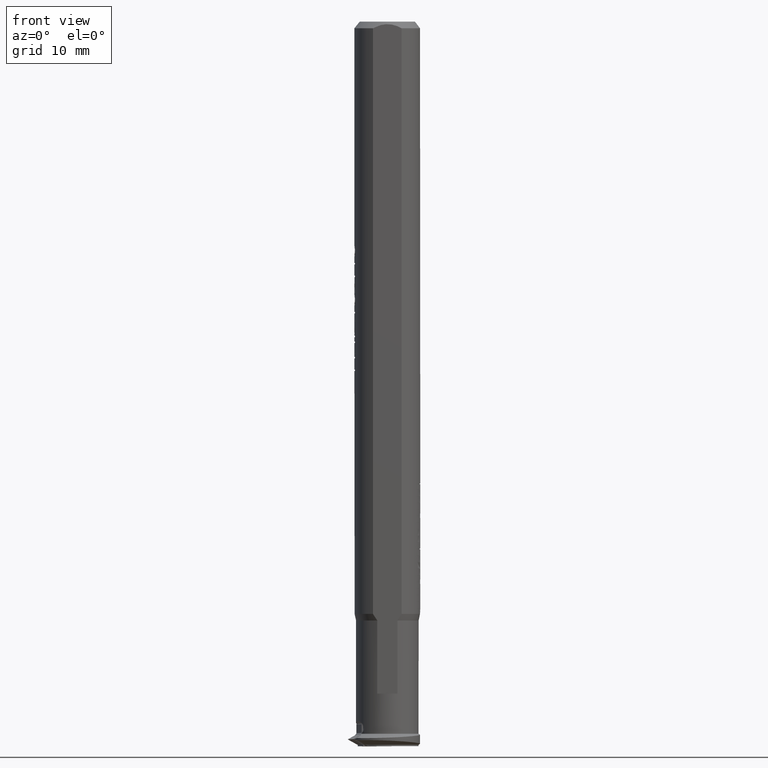
[diagram: clean part render]
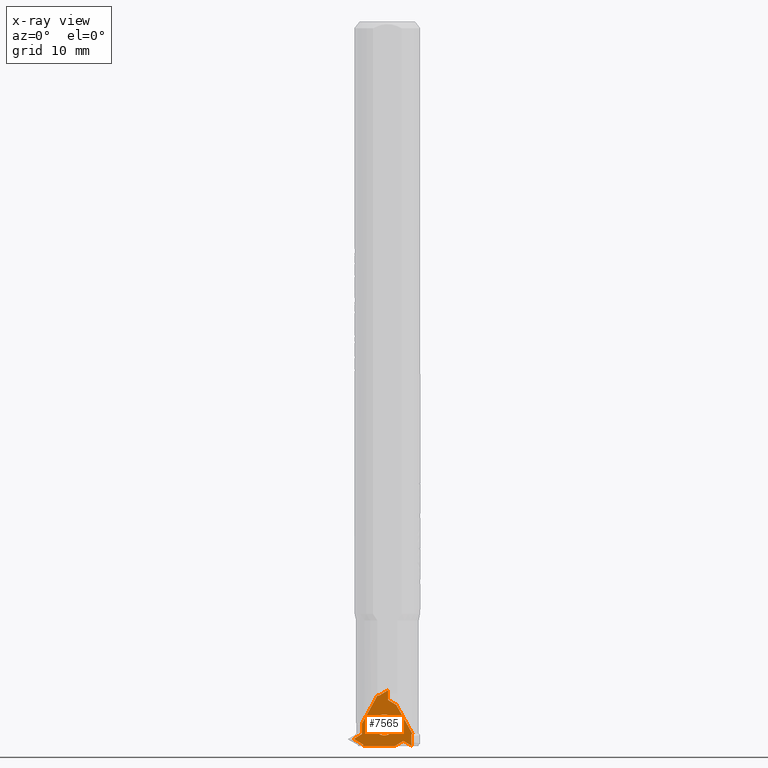
[diagram: x-ray — body ghosted, one internal face saturated and labeled with its STEP entity id]
A machine part, front view, then the same camera in x-ray: the body is ghosted and one INTERNAL B-rep face — a face not visible from any outside direction — is saturated and labeled: STEP entity #7565.
In plain terms, the highlighted planar face has unit normal (0.284, -0.9587, 0.0175).
Its self-contained STEP definition (entity closure, byte-faithful):
#2 = EDGE_CURVE ( 'NONE', #1938, #11588, #8624, .T. ) ;
#68 = VECTOR ( 'NONE', #2410, 1000.000000000000000 ) ;
#124 = CARTESIAN_POINT ( 'NONE',  ( 30.35267940778203055, 19.58460475410077350, 31.88854010275164796 ) ) ;
#163 = ORIENTED_EDGE ( 'NONE', *, *, #1622, .T. ) ;
#202 = DIRECTION ( 'NONE',  ( -0.9998475907802266693, 0.01686348481539434382, -0.004518638163989839238 ) ) ;
#237 = CARTESIAN_POINT ( 'NONE',  ( 38.78294239166275048, 20.48588703296727687, 35.44932666681565792 ) ) ;
#453 = CARTESIAN_POINT ( 'NONE',  ( 37.74575299447179333, 17.90819771707623431, 26.68344960724523318 ) ) ;
#538 = ORIENTED_EDGE ( 'NONE', *, *, #2, .T. ) ;
#981 = LINE ( 'NONE', #10483, #1013 ) ;
#992 = CARTESIAN_POINT ( 'NONE',  ( 38.80283257755898063, 19.74832583102699601, 32.96058419290434216 ) ) ;
#1013 = VECTOR ( 'NONE', #10801, 1000.000000000000227 ) ;
#1052 = CARTESIAN_POINT ( 'NONE',  ( 32.59036360819784051, 19.92066147013192889, 33.16057255138356652 ) ) ;
#1070 = LINE ( 'NONE', #9150, #9295 ) ;
#1181 = DIRECTION ( 'NONE',  ( 0.01745240643727649990, 0.9586737019784269398, -0.2839720877912588759 ) ) ;
#1237 = FACE_OUTER_BOUND ( 'NONE', #1760, .T. ) ;
#1312 = ORIENTED_EDGE ( 'NONE', *, *, #9083, .T. ) ;
#1622 = EDGE_CURVE ( 'NONE', #3891, #13484, #9354, .T. ) ;
#1645 = VECTOR ( 'NONE', #3368, 1000.000000000000227 ) ;
#1710 = VERTEX_POINT ( 'NONE', #7313 ) ;
#1760 = EDGE_LOOP ( 'NONE', ( #12413, #13482, #1312, #9151, #4773, #538, #6501, #163, #6337, #3579, #12958, #9639, #9559, #4110, #4515 ) ) ;
#1938 = VERTEX_POINT ( 'NONE', #6869 ) ;
#1943 = CARTESIAN_POINT ( 'NONE',  ( 38.78294239166275048, 20.48588703296727687, 35.44932666681565792 ) ) ;
#2024 = DIRECTION ( 'NONE',  ( -0.4995281435317117658, 0.2543895985764801360, 0.8281048037270759554 ) ) ;
#2271 = AXIS2_PLACEMENT_3D ( 'NONE', #7542, #5154, #7412 ) ;
#2410 = DIRECTION ( 'NONE',  ( -0.8661218432352896235, -0.1273996282218899379, -0.4833242052697429569 ) ) ;
#2482 = LINE ( 'NONE', #10833, #68 ) ;
#2918 = DIRECTION ( 'NONE',  ( 0.0004568594138889568506, 0.2840076689367019291, 0.9588218996584385589 ) ) ;
#3053 = CARTESIAN_POINT ( 'NONE',  ( 31.83001730947549035, 19.55968789126874086, 31.89521667574663510 ) ) ;
#3263 = AXIS2_PLACEMENT_3D ( 'NONE', #6397, #1181, #4338 ) ;
#3368 = DIRECTION ( 'NONE',  ( 0.4995281435317286967, -0.2543895985764796919, -0.8281048037270657414 ) ) ;
#3449 = LINE ( 'NONE', #8716, #9305 ) ;
#3573 = CARTESIAN_POINT ( 'NONE',  ( 30.35267940778203055, 19.58460475410077350, 31.88854010275164796 ) ) ;
#3579 = ORIENTED_EDGE ( 'NONE', *, *, #12421, .T. ) ;
#3599 = LINE ( 'NONE', #12283, #7954 ) ;
#3661 = DIRECTION ( 'NONE',  ( -0.4995281435317269758, 0.2543895985764675904, 0.8281048037270706264 ) ) ;
#3891 = VERTEX_POINT ( 'NONE', #453 ) ;
#3913 = EDGE_CURVE ( 'NONE', #7770, #1938, #3599, .T. ) ;
#4107 = EDGE_CURVE ( 'NONE', #1710, #6405, #2482, .T. ) ;
#4110 = ORIENTED_EDGE ( 'NONE', *, *, #10647, .T. ) ;
#4188 = FACE_BOUND ( 'NONE', #13211, .T. ) ;
#4338 = DIRECTION ( 'NONE',  ( 0.000000000000000000, 0.2840153447039157064, 0.9588197348681950505 ) ) ;
#4383 = LINE ( 'NONE', #10730, #4724 ) ;
#4447 = VECTOR ( 'NONE', #12596, 1000.000000000000227 ) ;
#4515 = ORIENTED_EDGE ( 'NONE', *, *, #4107, .T. ) ;
#4534 = EDGE_CURVE ( 'NONE', #11681, #5890, #11318, .T. ) ;
#4576 = CARTESIAN_POINT ( 'NONE',  ( 31.83001730947549035, 19.55968789126874086, 31.89521667574662800 ) ) ;
#4701 = VECTOR ( 'NONE', #5638, 1000.000000000000227 ) ;
#4724 = VECTOR ( 'NONE', #11831, 1000.000000000000114 ) ;
#4773 = ORIENTED_EDGE ( 'NONE', *, *, #3913, .T. ) ;
#4818 = VERTEX_POINT ( 'NONE', #7935 ) ;
#4880 = VERTEX_POINT ( 'NONE', #124 ) ;
#4897 = CARTESIAN_POINT ( 'NONE',  ( 37.00766864420985058, 18.28407439992182049, 27.90702670479642933 ) ) ;
#5074 = VERTEX_POINT ( 'NONE', #11129 ) ;
#5097 = LINE ( 'NONE', #4897, #9097 ) ;
#5127 = CARTESIAN_POINT ( 'NONE',  ( 38.60055037292320179, 18.31401184337759958, 28.10598942511515119 ) ) ;
#5154 = DIRECTION ( 'NONE',  ( -0.01745240643727651031, -0.9586737019784270508, 0.2839720877912588204 ) ) ;
#5484 = EDGE_CURVE ( 'NONE', #13484, #4818, #981, .T. ) ;
#5486 = EDGE_CURVE ( 'NONE', #6405, #10917, #10420, .T. ) ;
#5574 = VECTOR ( 'NONE', #11346, 1000.000000000000000 ) ;
#5638 = DIRECTION ( 'NONE',  ( 0.5003194472485011923, 0.2375261137610882589, 0.8326234418910559709 ) ) ;
#5890 = VERTEX_POINT ( 'NONE', #12082 ) ;
#5900 = CARTESIAN_POINT ( 'NONE',  ( 31.10606095184860820, 19.10247408721610185, 30.30719570428262699 ) ) ;
#6008 = VECTOR ( 'NONE', #202, 1000.000000000000227 ) ;
#6080 = DIRECTION ( 'NONE',  ( -0.9998475907802267804, 0.01686348481539011110, -0.004518638163994717280 ) ) ;
#6259 = VERTEX_POINT ( 'NONE', #6401 ) ;
#6290 = CARTESIAN_POINT ( 'NONE',  ( 37.74575299447179333, 17.90819771707623431, 26.68344960724523318 ) ) ;
#6337 = ORIENTED_EDGE ( 'NONE', *, *, #5484, .T. ) ;
#6397 = CARTESIAN_POINT ( 'NONE',  ( 35.61440356861483281, 19.32019038160477109, 31.31926810852599630 ) ) ;
#6401 = CARTESIAN_POINT ( 'NONE',  ( 38.04368884023122632, 20.13492721295372689, 34.21907299626947463 ) ) ;
#6405 = VERTEX_POINT ( 'NONE', #7686 ) ;
#6431 = VERTEX_POINT ( 'NONE', #12700 ) ;
#6501 = ORIENTED_EDGE ( 'NONE', *, *, #7204, .T. ) ;
#6589 = CARTESIAN_POINT ( 'NONE',  ( 35.48817860815978520, 18.30970220298536333, 27.90015963252460907 ) ) ;
#6730 = EDGE_CURVE ( 'NONE', #5074, #7770, #4383, .T. ) ;
#6869 = CARTESIAN_POINT ( 'NONE',  ( 35.48817860815978520, 18.30970220298536333, 27.90015963252460551 ) ) ;
#7204 = EDGE_CURVE ( 'NONE', #11588, #3891, #5097, .T. ) ;
#7313 = CARTESIAN_POINT ( 'NONE',  ( 36.97479395098873312, 20.56557627051365600, 35.60722751978192235 ) ) ;
#7412 = DIRECTION ( 'NONE',  ( 0.000000000000000000, -0.2840153447039163170, -0.9588197348681949395 ) ) ;
#7542 = CARTESIAN_POINT ( 'NONE',  ( 30.34214971424912832, 19.58996710364134231, 31.90599595565859303 ) ) ;
#7565 = ADVANCED_FACE ( 'NONE', ( #1237, #4188 ), #11634, .T. ) ;
#7686 = CARTESIAN_POINT ( 'NONE',  ( 32.59036360819784051, 19.92066147013193245, 33.16057255138356652 ) ) ;
#7770 = VERTEX_POINT ( 'NONE', #5900 ) ;
#7935 = CARTESIAN_POINT ( 'NONE',  ( 38.80051989107924726, 18.31063914641451973, 28.10689315274795774 ) ) ;
#7954 = VECTOR ( 'NONE', #13101, 999.9999999999998863 ) ;
#8624 = LINE ( 'NONE', #6589, #4447 ) ;
#8637 = CARTESIAN_POINT ( 'NONE',  ( 38.04368884023122632, 20.13492721295372334, 34.21907299626947463 ) ) ;
#8716 = CARTESIAN_POINT ( 'NONE',  ( 37.07469957969505714, 20.51469835079836912, 35.44160655903653634 ) ) ;
#8756 = VECTOR ( 'NONE', #2918, 1000.000000000000227 ) ;
#9003 = EDGE_CURVE ( 'NONE', #6259, #11681, #10681, .T. ) ;
#9069 = DIRECTION ( 'NONE',  ( 0.4995281435317227570, -0.2543895985764820789, -0.8281048037270687390 ) ) ;
#9083 = EDGE_CURVE ( 'NONE', #4880, #5074, #11915, .T. ) ;
#9097 = VECTOR ( 'NONE', #9069, 1000.000000000000227 ) ;
#9150 = CARTESIAN_POINT ( 'NONE',  ( 38.80283257755897353, 19.74832583102699601, 32.96058419290434216 ) ) ;
#9151 = ORIENTED_EDGE ( 'NONE', *, *, #6730, .T. ) ;
#9175 = CIRCLE ( 'NONE', #3263, 1.599999999999996314 ) ;
#9295 = VECTOR ( 'NONE', #2024, 1000.000000000000000 ) ;
#9305 = VECTOR ( 'NONE', #3661, 1000.000000000000000 ) ;
#9354 = LINE ( 'NONE', #6290, #5574 ) ;
#9559 = ORIENTED_EDGE ( 'NONE', *, *, #4534, .T. ) ;
#9639 = ORIENTED_EDGE ( 'NONE', *, *, #9003, .T. ) ;
#9731 = EDGE_CURVE ( 'NONE', #12563, #6259, #1070, .T. ) ;
#10360 = LINE ( 'NONE', #12418, #8756 ) ;
#10420 = LINE ( 'NONE', #1052, #11287 ) ;
#10483 = CARTESIAN_POINT ( 'NONE',  ( 38.60055037292320179, 18.31401184337759958, 28.10598942511515475 ) ) ;
#10647 = EDGE_CURVE ( 'NONE', #5890, #1710, #3449, .T. ) ;
#10681 = LINE ( 'NONE', #8637, #4701 ) ;
#10730 = CARTESIAN_POINT ( 'NONE',  ( 31.20612484129831543, 19.14997930996832309, 30.47372039266084087 ) ) ;
#10801 = DIRECTION ( 'NONE',  ( 0.9998475907802266693, -0.01686348481539491975, 0.004518638163988857384 ) ) ;
#10833 = CARTESIAN_POINT ( 'NONE',  ( 36.97479395098874022, 20.56557627051365245, 35.60722751978191525 ) ) ;
#10917 = VERTEX_POINT ( 'NONE', #4576 ) ;
#11129 = CARTESIAN_POINT ( 'NONE',  ( 31.20612484129831188, 19.14997930996832309, 30.47372039266084087 ) ) ;
#11269 = LINE ( 'NONE', #3053, #12010 ) ;
#11287 = VECTOR ( 'NONE', #11517, 1000.000000000000114 ) ;
#11318 = LINE ( 'NONE', #1943, #6008 ) ;
#11346 = DIRECTION ( 'NONE',  ( 0.5003194472485072986, 0.2375261137610901185, 0.8326234418910518631 ) ) ;
#11517 = DIRECTION ( 'NONE',  ( -0.5003194472485098521, -0.2375261137610854001, -0.8326234418910516411 ) ) ;
#11588 = VERTEX_POINT ( 'NONE', #12543 ) ;
#11634 = PLANE ( 'NONE',  #2271 ) ;
#11681 = VERTEX_POINT ( 'NONE', #237 ) ;
#11800 = ORIENTED_EDGE ( 'NONE', *, *, #12820, .T. ) ;
#11831 = DIRECTION ( 'NONE',  ( -0.5003194472485037458, -0.2375261137610923667, -0.8326234418910534174 ) ) ;
#11915 = LINE ( 'NONE', #3573, #1645 ) ;
#12010 = VECTOR ( 'NONE', #6080, 1000.000000000000114 ) ;
#12082 = CARTESIAN_POINT ( 'NONE',  ( 37.07469957969505714, 20.51469835079836912, 35.44160655903653634 ) ) ;
#12283 = CARTESIAN_POINT ( 'NONE',  ( 31.10606095184861175, 19.10247408721610185, 30.30719570428262699 ) ) ;
#12413 = ORIENTED_EDGE ( 'NONE', *, *, #5486, .T. ) ;
#12418 = CARTESIAN_POINT ( 'NONE',  ( 38.80051989107925436, 18.31063914641451973, 28.10689315274795064 ) ) ;
#12421 = EDGE_CURVE ( 'NONE', #4818, #12563, #10360, .T. ) ;
#12543 = CARTESIAN_POINT ( 'NONE',  ( 37.00766864420984348, 18.28407439992182049, 27.90702670479642933 ) ) ;
#12562 = EDGE_CURVE ( 'NONE', #10917, #4880, #11269, .T. ) ;
#12563 = VERTEX_POINT ( 'NONE', #992 ) ;
#12596 = DIRECTION ( 'NONE',  ( 0.9998475907802267804, -0.01686348481539230032, 0.004518638163984897878 ) ) ;
#12700 = CARTESIAN_POINT ( 'NONE',  ( 35.61440356861483281, 19.77461493313103347, 32.85337968431510802 ) ) ;
#12820 = EDGE_CURVE ( 'NONE', #6431, #6431, #9175, .T. ) ;
#12958 = ORIENTED_EDGE ( 'NONE', *, *, #9731, .T. ) ;
#13101 = DIRECTION ( 'NONE',  ( 0.8656649838214016679, -0.1566080407148104370, -0.4754976943886907725 ) ) ;
#13211 = EDGE_LOOP ( 'NONE', ( #11800 ) ) ;
#13482 = ORIENTED_EDGE ( 'NONE', *, *, #12562, .T. ) ;
#13484 = VERTEX_POINT ( 'NONE', #5127 ) ;